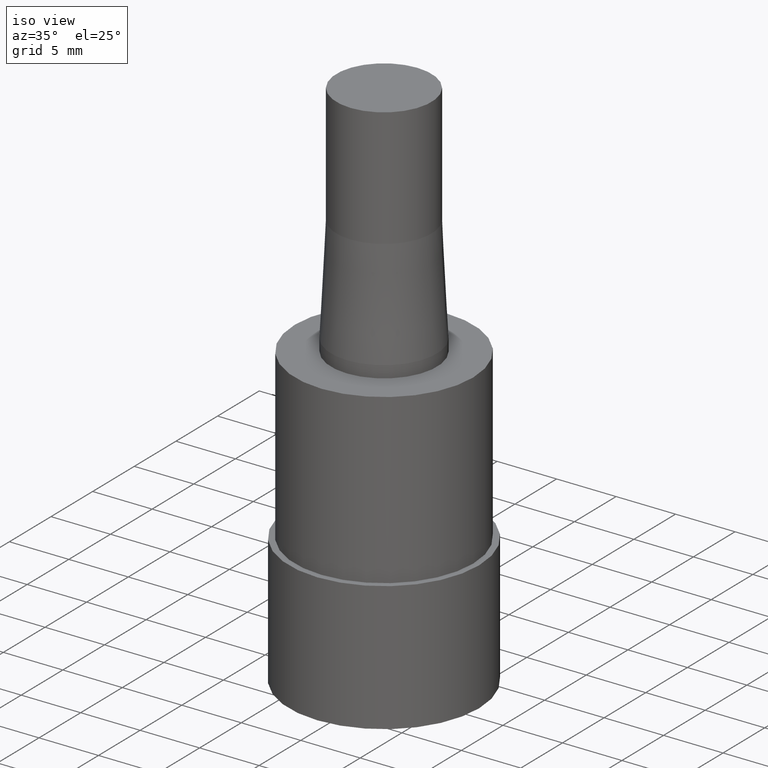
[diagram: clean part render]
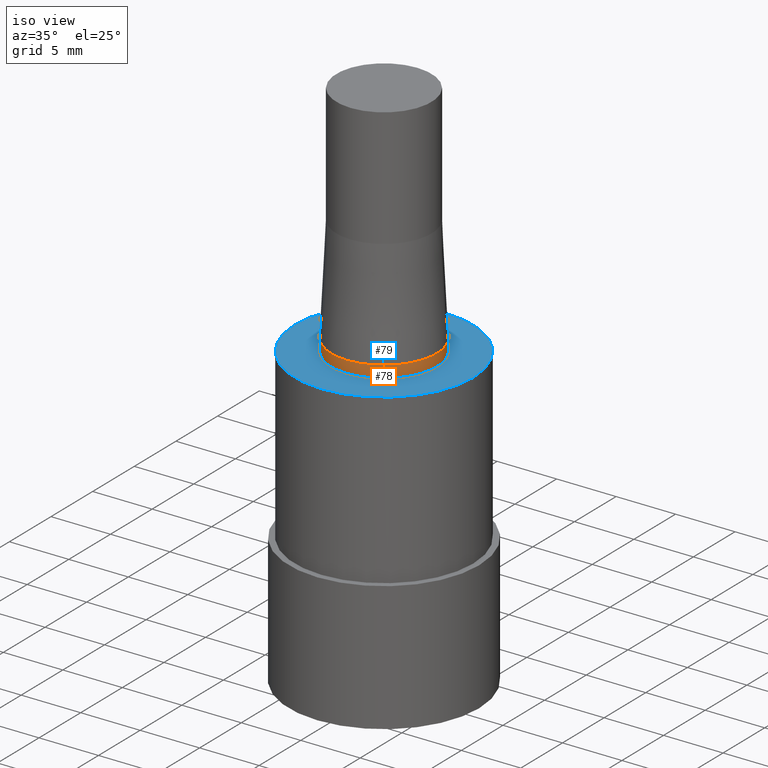
[diagram: same view with the hole feature highlighted: cylindrical wall and planar end face, labeled with their STEP entity ids]
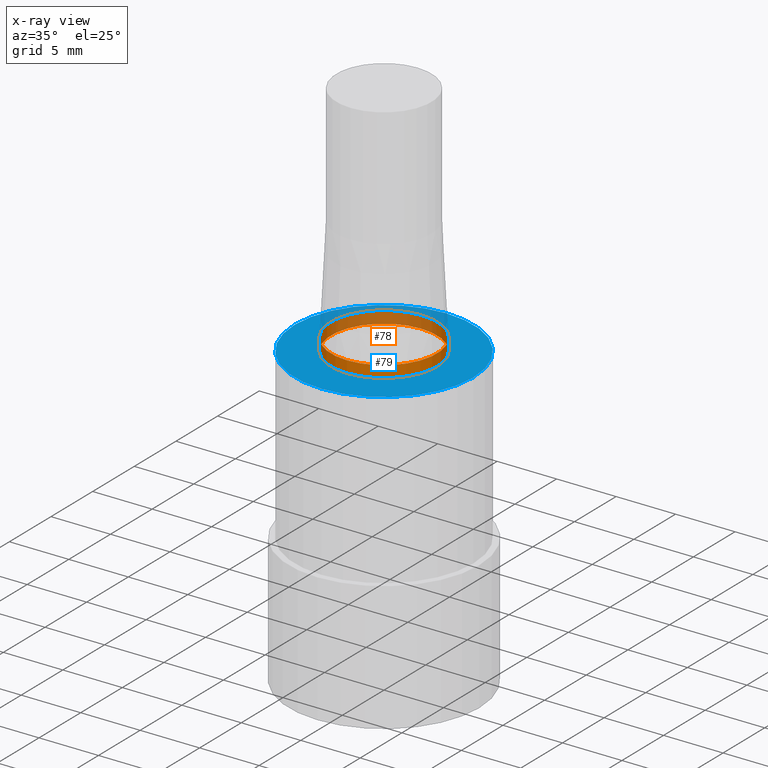
[diagram: x-ray of the same camera — body ghosted, the hole faces saturated]
A machine part, iso view. The highlighted faces form one hole feature of diameter 8.9 mm: the cylindrical wall (entity #78, orange) and its adjacent planar end face (entity #79, blue) — they share a circular edge in the B-rep.
The next image is the same camera in x-ray (body ghosted, the hole faces saturated) — the bore reads through the body.
Wall:
#78=ADVANCED_FACE('',(#93,#94),#95,.T.);
#93=FACE_BOUND('',#118,.T.);
#94=FACE_BOUND('',#119,.T.);
#95=CYLINDRICAL_SURFACE('',#120,4.45);
#118=EDGE_LOOP('',(#149));
#119=EDGE_LOOP('',(#150));
#120=AXIS2_PLACEMENT_3D('',#151,#152,#153);
#149=ORIENTED_EDGE('',*,*,#181,.F.);
#150=ORIENTED_EDGE('',*,*,#180,.T.);
#151=CARTESIAN_POINT('',(-1.56142466891288E-015,-3.12284933782576E-015,25.5000000000001));
#152=DIRECTION('',(-6.12323399573676E-017,-1.22464679914735E-016,1.0));
#153=DIRECTION('',(-1.23259516440783E-032,1.0,1.22464679914735E-016));
#180=EDGE_CURVE('',#190,#190,#191,.T.);
#181=EDGE_CURVE('',#192,#192,#193,.T.);
#190=VERTEX_POINT('',#206);
#191=CIRCLE('',#207,4.45);
#192=VERTEX_POINT('',#208);
#193=CIRCLE('',#209,4.45);
#206=CARTESIAN_POINT('',(-1.59204083889157E-015,4.45,26.0000000000001));
#207=AXIS2_PLACEMENT_3D('',#224,#225,#226);
#208=CARTESIAN_POINT('',(-1.5308084989342E-015,4.45,25.0000000000001));
#209=AXIS2_PLACEMENT_3D('',#227,#228,#229);
#224=CARTESIAN_POINT('',(-1.59204083889157E-015,-3.18408167778313E-015,26.0000000000001));
#225=DIRECTION('',(6.12323399573676E-017,1.22464679914735E-016,-1.0));
#226=DIRECTION('',(-1.23259516440783E-032,1.0,1.22464679914735E-016));
#227=CARTESIAN_POINT('',(-1.5308084989342E-015,-3.06161699786839E-015,25.0000000000001));
#228=DIRECTION('',(6.12323399573676E-017,1.22464679914735E-016,-1.0));
#229=DIRECTION('',(-1.23259516440783E-032,1.0,1.22464679914735E-016));
End face:
#79=ADVANCED_FACE('',(#96,#97),#98,.T.);
#96=FACE_OUTER_BOUND('',#121,.T.);
#97=FACE_BOUND('',#122,.T.);
#98=PLANE('',#123);
#121=EDGE_LOOP('',(#154));
#122=EDGE_LOOP('',(#155));
#123=AXIS2_PLACEMENT_3D('',#156,#157,#158);
#154=ORIENTED_EDGE('',*,*,#182,.F.);
#155=ORIENTED_EDGE('',*,*,#181,.T.);
#156=CARTESIAN_POINT('',(-1.5308084989342E-015,5.975,25.0000000000001));
#157=DIRECTION('',(-6.12323399573677E-017,-1.22464679914735E-016,1.0));
#158=DIRECTION('',(1.23259516440783E-032,-1.0,-1.22464679914735E-016));
#181=EDGE_CURVE('',#192,#192,#193,.T.);
#182=EDGE_CURVE('',#194,#194,#195,.T.);
#192=VERTEX_POINT('',#208);
#193=CIRCLE('',#209,4.45);
#194=VERTEX_POINT('',#210);
#195=CIRCLE('',#211,7.5);
#208=CARTESIAN_POINT('',(-1.5308084989342E-015,4.45,25.0000000000001));
#209=AXIS2_PLACEMENT_3D('',#227,#228,#229);
#210=CARTESIAN_POINT('',(-1.5308084989342E-015,7.5,25.0000000000001));
#211=AXIS2_PLACEMENT_3D('',#230,#231,#232);
#227=CARTESIAN_POINT('',(-1.5308084989342E-015,-3.06161699786839E-015,25.0000000000001));
#228=DIRECTION('',(6.12323399573676E-017,1.22464679914735E-016,-1.0));
#229=DIRECTION('',(-1.23259516440783E-032,1.0,1.22464679914735E-016));
#230=CARTESIAN_POINT('',(-1.5308084989342E-015,-3.06161699786839E-015,25.0000000000001));
#231=DIRECTION('',(6.12323399573677E-017,1.22464679914735E-016,-1.0));
#232=DIRECTION('',(-1.23259516440783E-032,1.0,1.22464679914735E-016));